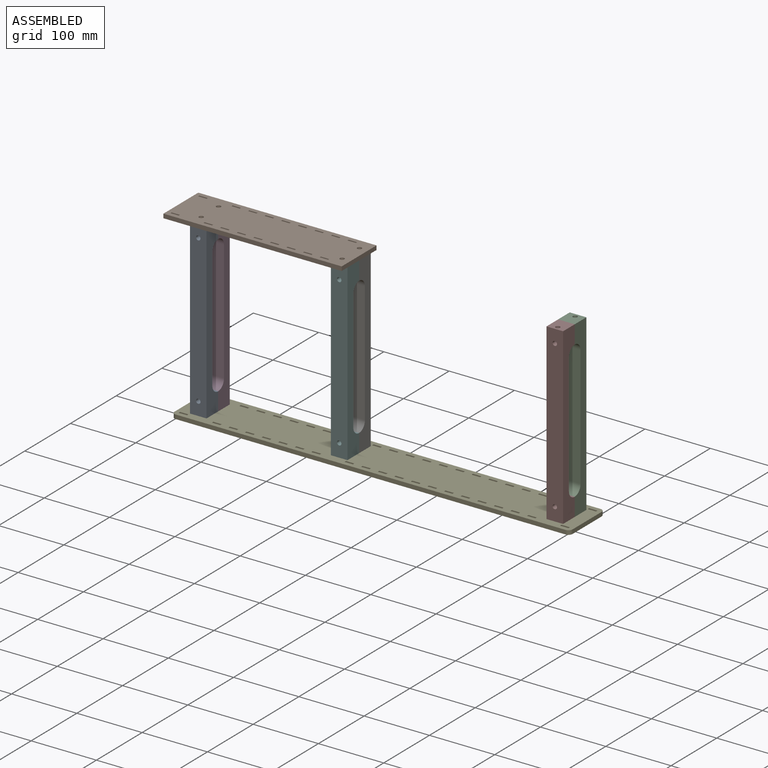
[diagram: assembled view]
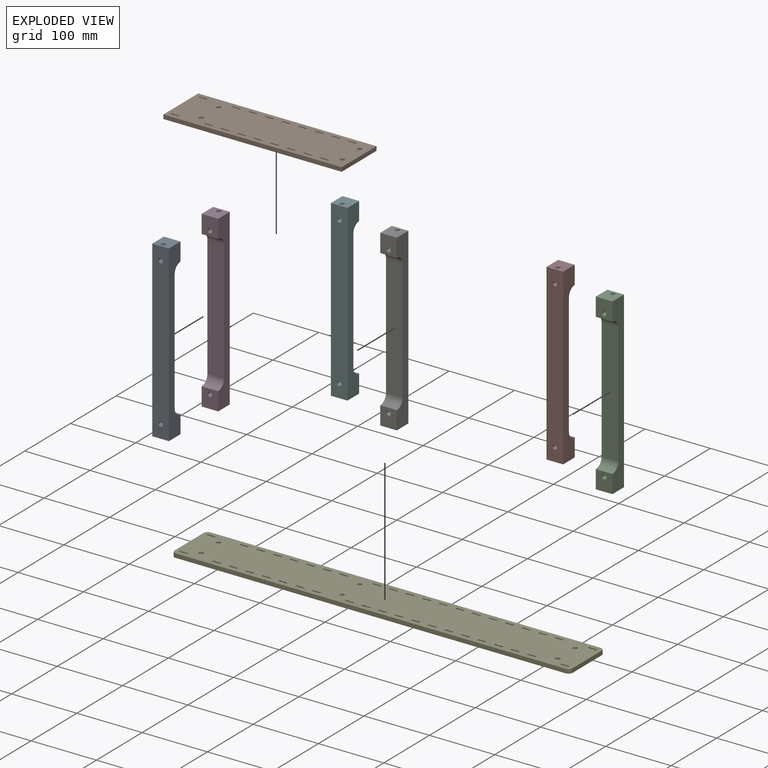
[diagram: exploded view]
GUIDED TOUR — MATED ASSEMBLY (Onshape document 8a57bc8862999d9479056bce, AutoMate assembly 8a57bc8862999d9479056bce_1d3e054195ad34977c405ab9_305c70e0a6d321dda90181b1_default)

This assembly has 8 components, labeled P0..P7 below (a component is one placed occurrence of a part; the same part can appear more than once), held together by 7 mates. A mate is a constraint between two components; its type names the relative motion it leaves free:
  FASTENED — locks the two components together rigidly (no relative motion).
Axis/direction vectors are unit vectors and 'through' points are millimeter coordinates, both in the assembly's world frame.

MATES
  1. FASTENED "Fastened 7": P1 <-> P5, direction (0.000, 0.000, -1.000) through (91.50, 49.64, 244.17) mm
  2. FASTENED "Fastened 2": P5 <-> P6, direction (0.000, 1.000, 0.000) through (91.50, 68.69, 223.85) mm
  3. FASTENED "Fastened 4": P0 <-> P4, direction (0.000, 0.000, -1.000) through (-124.40, 49.64, -22.53) mm
  4. FASTENED "Fastened 3": P2 <-> P7, direction (0.000, -1.000, 0.000) through (421.70, 68.69, 223.85) mm
  5. FASTENED "Fastened 5": P5 <-> P4, direction (0.000, 0.000, -1.000) through (91.50, 49.64, -22.53) mm
  6. FASTENED "Fastened 6": P7 <-> P4, direction (0.000, 0.000, -1.000) through (421.70, 49.64, -22.53) mm
  7. FASTENED "Fastened 1": P0 <-> P3, direction (0.000, 1.000, 0.000) through (-124.40, 68.69, 223.85) mm

ASSEMBLY ORDER
  1. P3 — the base component [order verified]
  2. P0 [order verified]
  3. P6 [order verified]
  4. P5 [order verified]
  5. P7 [order verified]
  6. P2 [order verified]
  7. P1 [order verified]
  8. P4 [order verified]
Order-tag legend:
  [order verified] — this step's position reverses a verified removal order: the component was checked to insert without passing through the ones already placed.

Of the 8 components, 1 carries the full construction recipe — the FeatureScript program that regenerates the part's solid from scratch; the rest are supplied as boundary geometry only.
Each toured component is shown spotlighted twice — in the assembled view, then in the exploded view, where a leader line traces a displaced component back to its assembled socket (saturated green if recipe-attached, orange if geometry-only; every other component desaturated gray) — followed by its recipe or geometry summary and the mates that hold it.
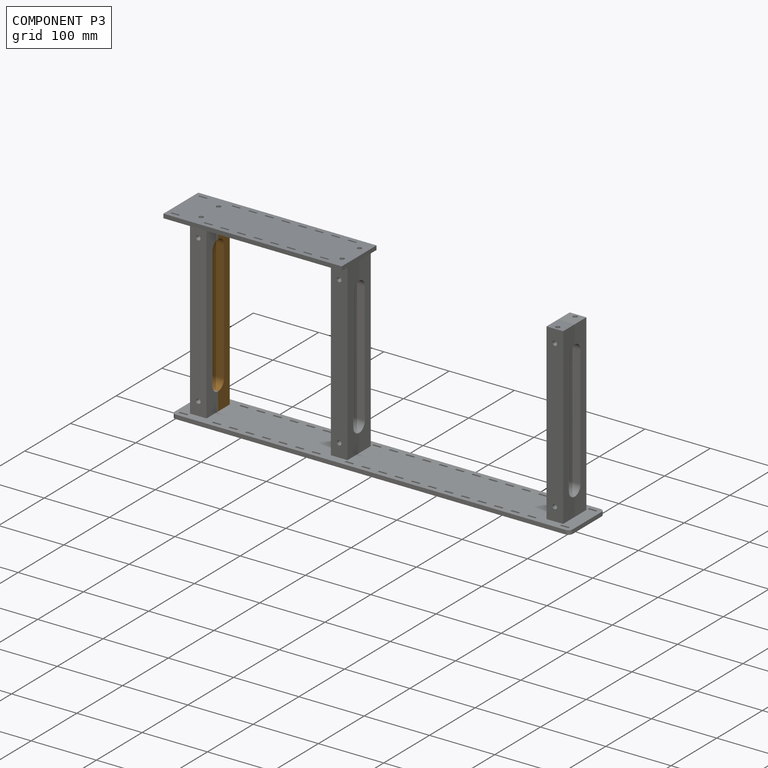
[diagram: component P3 — assembled]
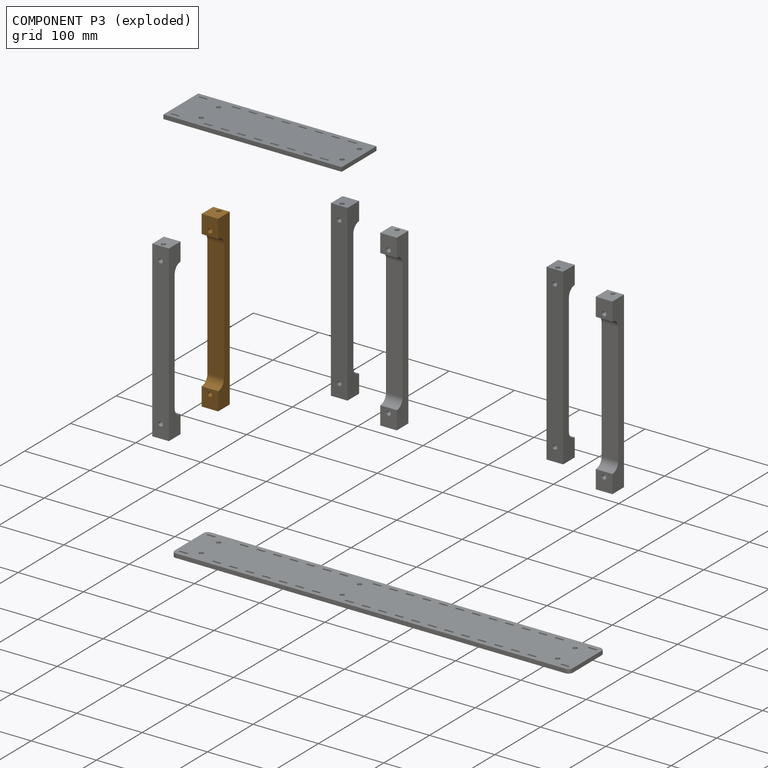
[diagram: component P3 — exploded]
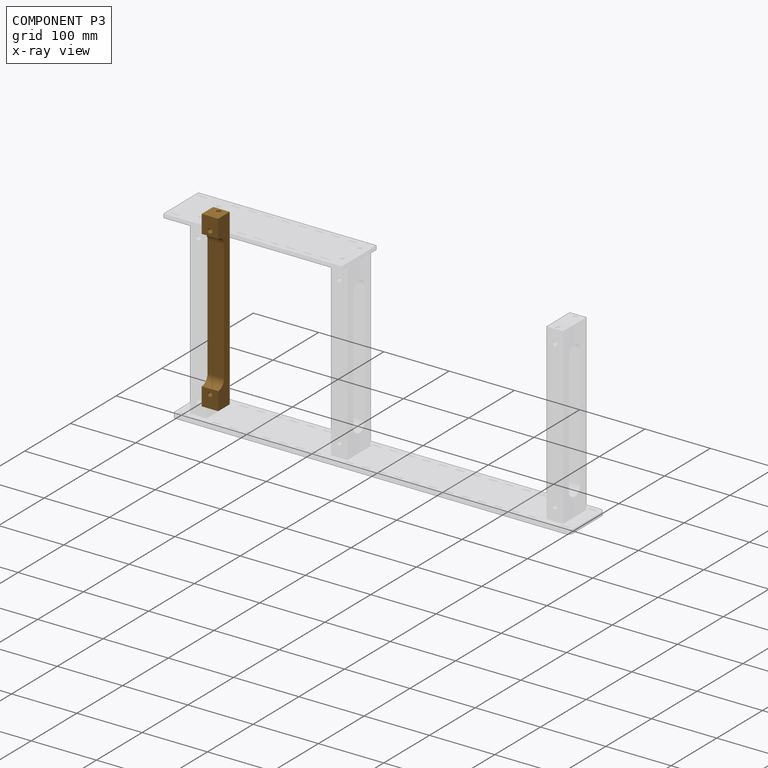
[diagram: component P3 — x-ray view]
COMPONENT P3 — geometry summary (no construction recipe available for this part):
  bounding box: 266.7 x 25.4 x 25.4 mm
  B-rep topology: 1 solid, 16 faces, 72 edges
  volume: 103105 mm^3 (60% of its bounding box)
  symmetry: 2-fold rotationally symmetric about the x axis; mirror-symmetric across its y mid-plane, z mid-plane
Held by: FASTENED mate "Fastened 1" to P0.
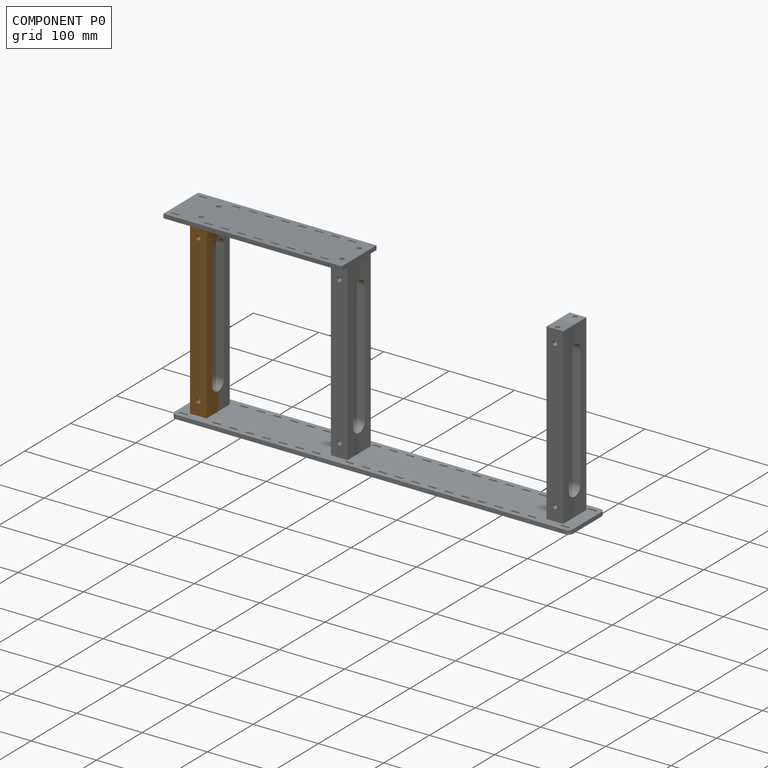
[diagram: component P0 — assembled]
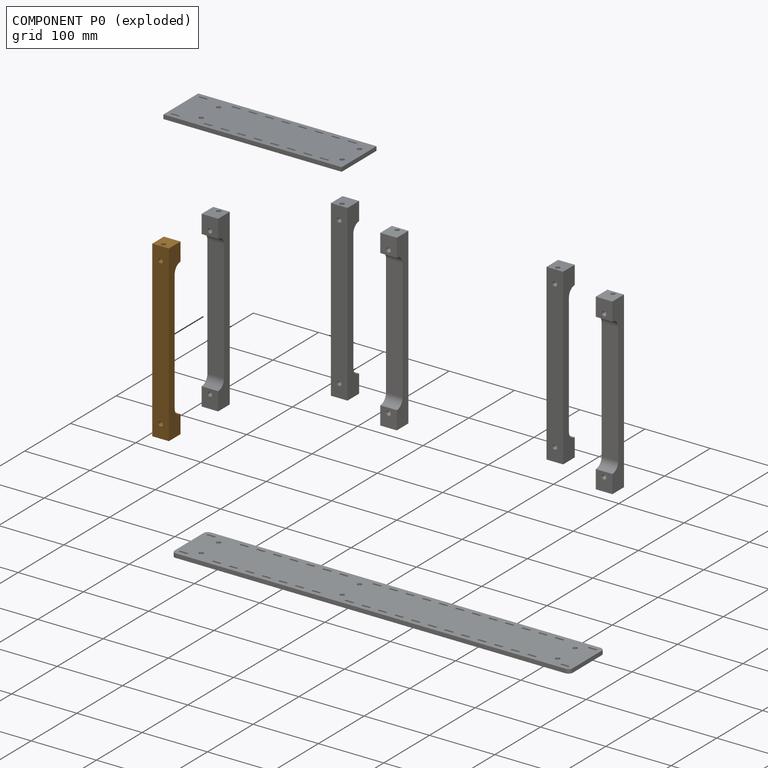
[diagram: component P0 — exploded]
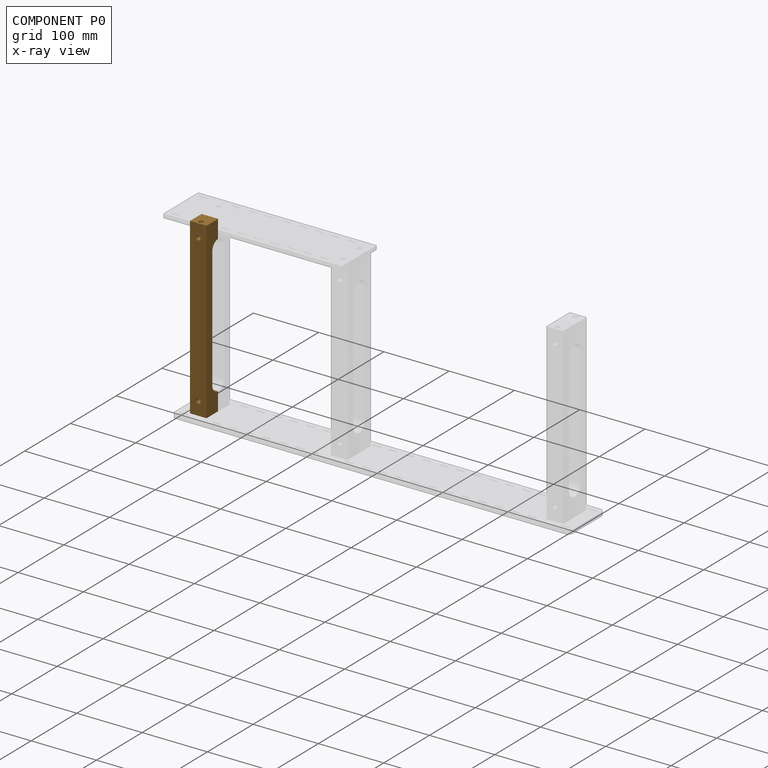
[diagram: component P0 — x-ray view]
COMPONENT P0 — geometry summary (no construction recipe available for this part):
  bounding box: 266.7 x 25.4 x 25.4 mm
  B-rep topology: 1 solid, 16 faces, 72 edges
  volume: 103105 mm^3 (60% of its bounding box)
  symmetry: 2-fold rotationally symmetric about the x axis; mirror-symmetric across its y mid-plane, z mid-plane
Held by: FASTENED mate "Fastened 4" to P4; FASTENED mate "Fastened 1" to P3.
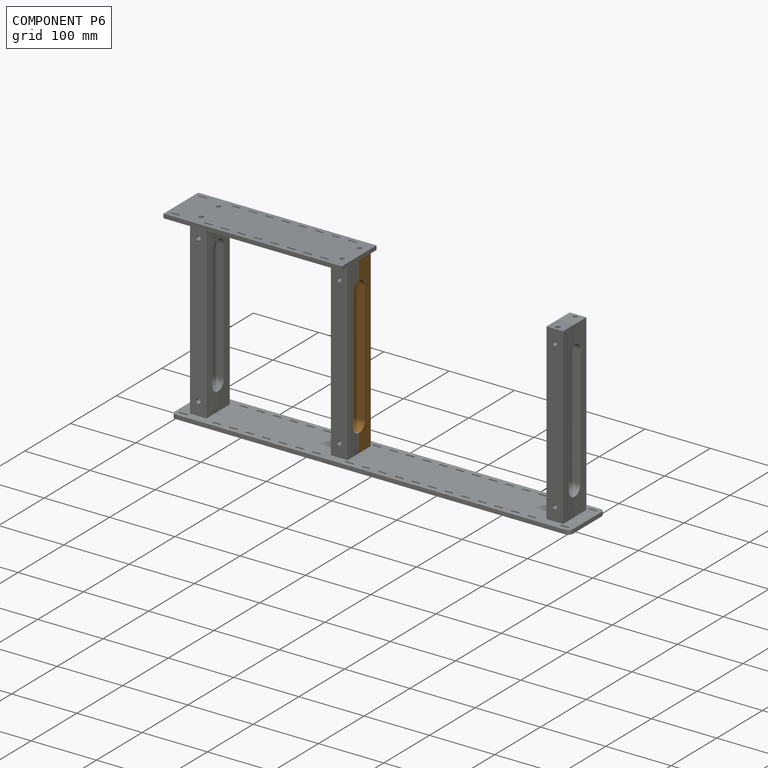
[diagram: component P6 — assembled]
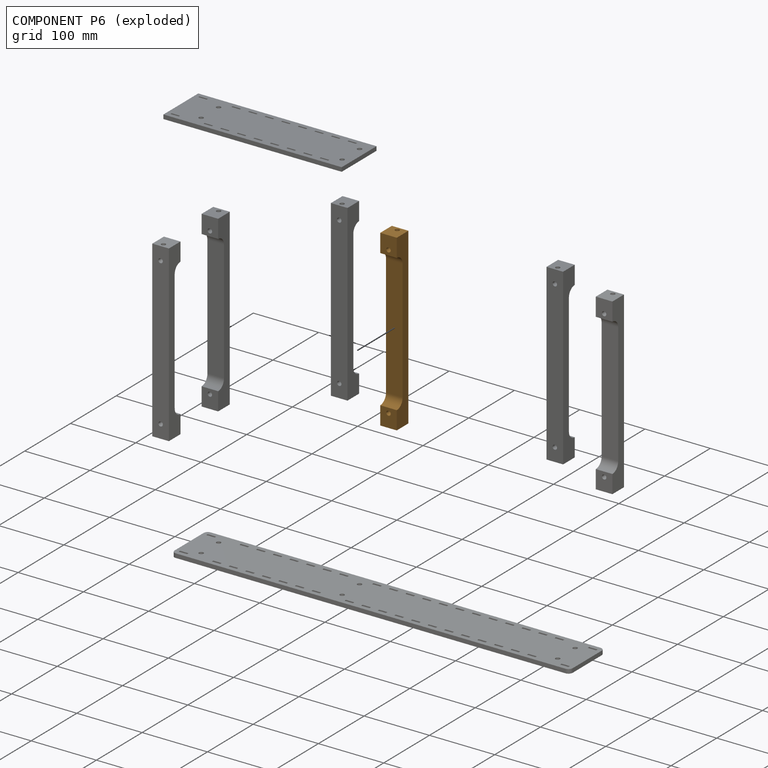
[diagram: component P6 — exploded]
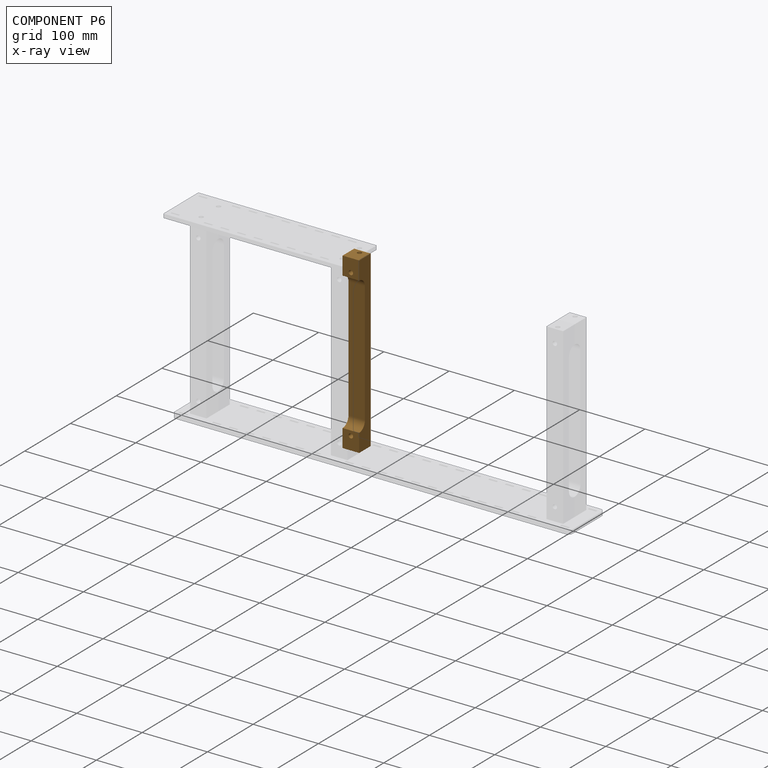
[diagram: component P6 — x-ray view]
COMPONENT P6 — geometry summary (no construction recipe available for this part):
  bounding box: 266.7 x 25.4 x 25.4 mm
  B-rep topology: 1 solid, 16 faces, 72 edges
  volume: 103105 mm^3 (60% of its bounding box)
  symmetry: 2-fold rotationally symmetric about the x axis; mirror-symmetric across its y mid-plane, z mid-plane
Held by: FASTENED mate "Fastened 2" to P5.
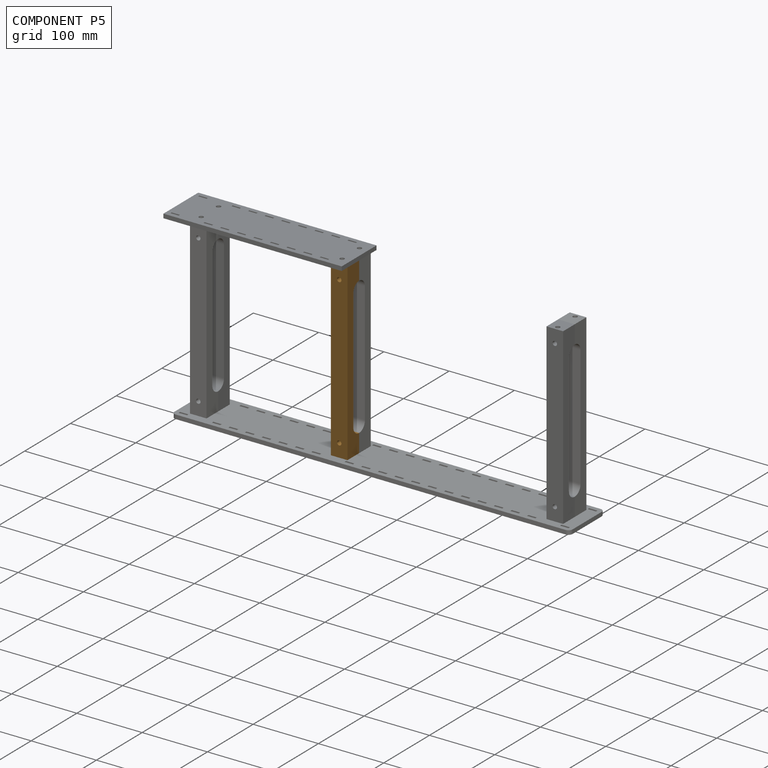
[diagram: component P5 — assembled]
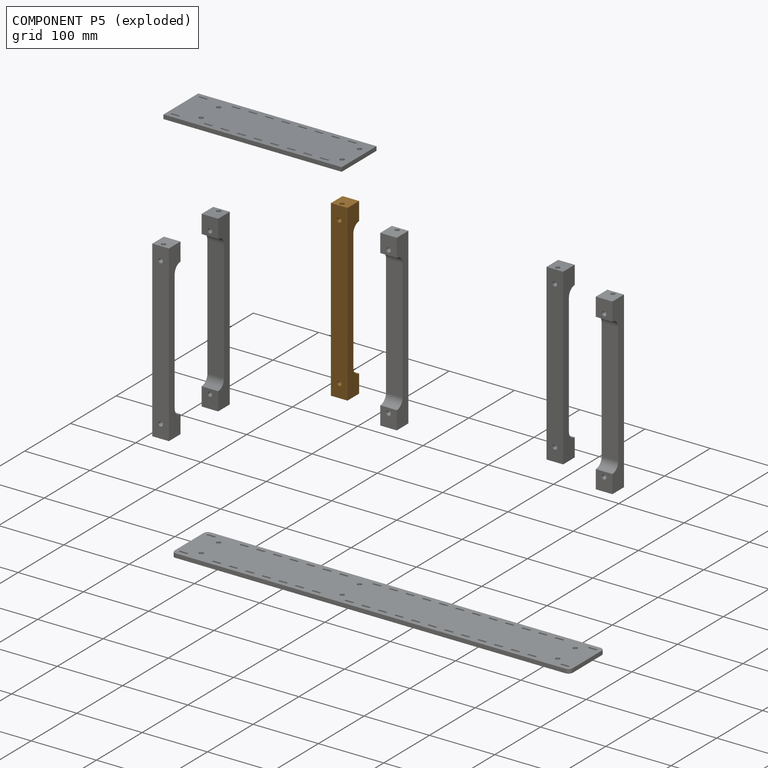
[diagram: component P5 — exploded]
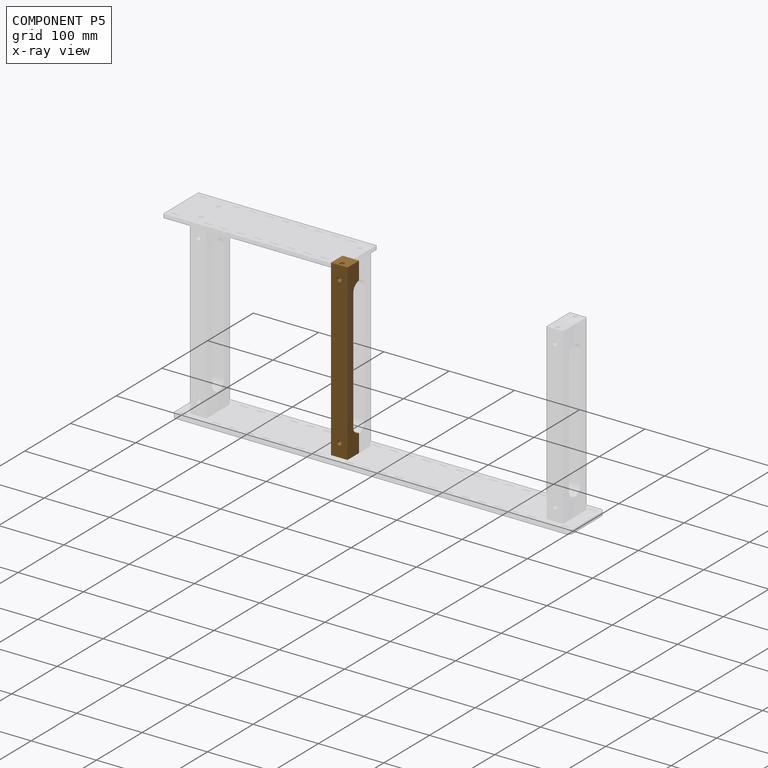
[diagram: component P5 — x-ray view]
COMPONENT P5 — geometry summary (no construction recipe available for this part):
  bounding box: 266.7 x 25.4 x 25.4 mm
  B-rep topology: 1 solid, 16 faces, 72 edges
  volume: 103105 mm^3 (60% of its bounding box)
  symmetry: 2-fold rotationally symmetric about the x axis; mirror-symmetric across its y mid-plane, z mid-plane
Held by: FASTENED mate "Fastened 7" to P1; FASTENED mate "Fastened 2" to P6; FASTENED mate "Fastened 5" to P4.
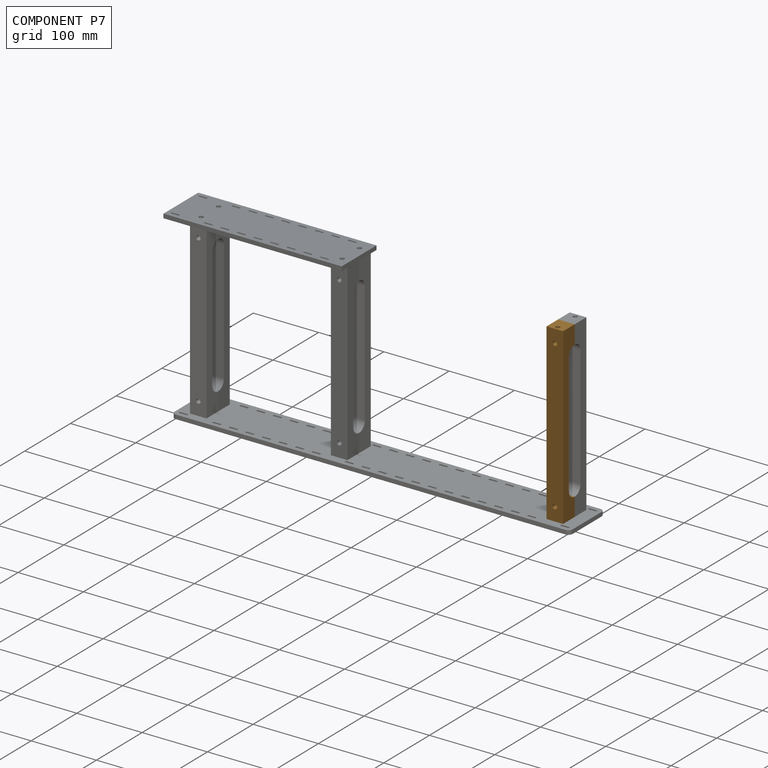
[diagram: component P7 — assembled]
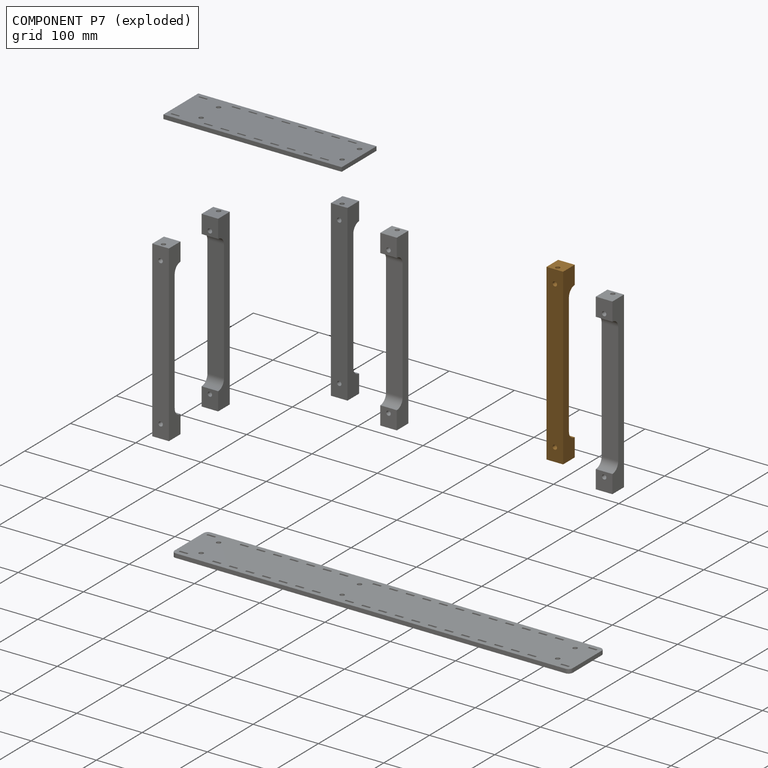
[diagram: component P7 — exploded]
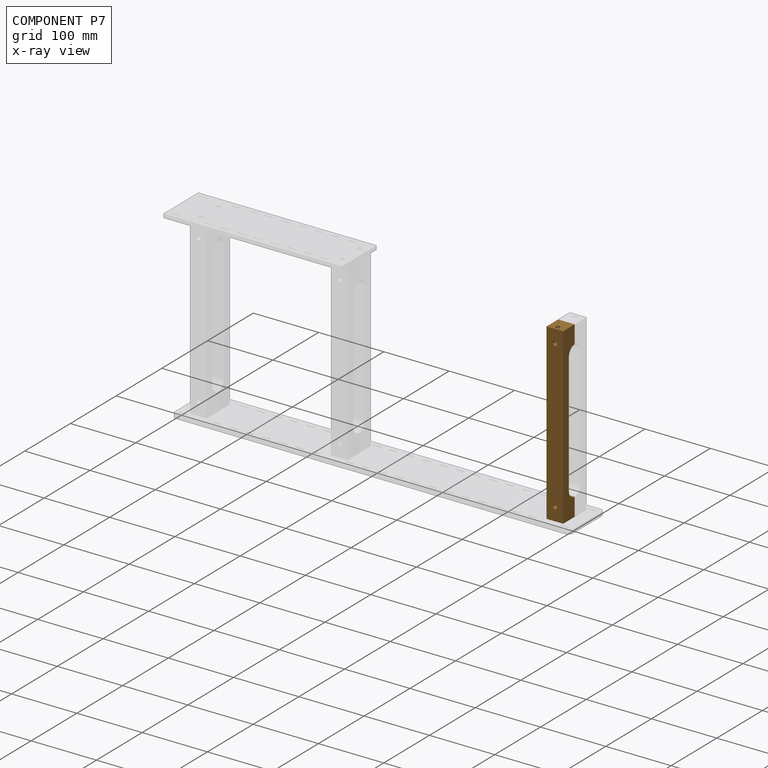
[diagram: component P7 — x-ray view]
COMPONENT P7 — geometry summary (no construction recipe available for this part):
  bounding box: 266.7 x 25.4 x 25.4 mm
  B-rep topology: 1 solid, 16 faces, 72 edges
  volume: 103105 mm^3 (60% of its bounding box)
  symmetry: 2-fold rotationally symmetric about the x axis; mirror-symmetric across its y mid-plane, z mid-plane
Held by: FASTENED mate "Fastened 3" to P2; FASTENED mate "Fastened 6" to P4.
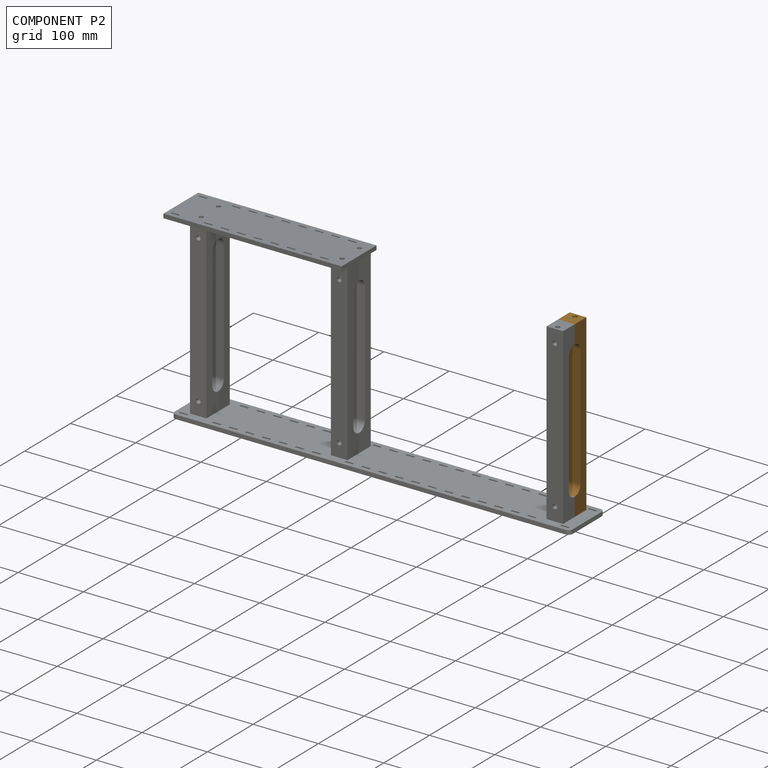
[diagram: component P2 — assembled]
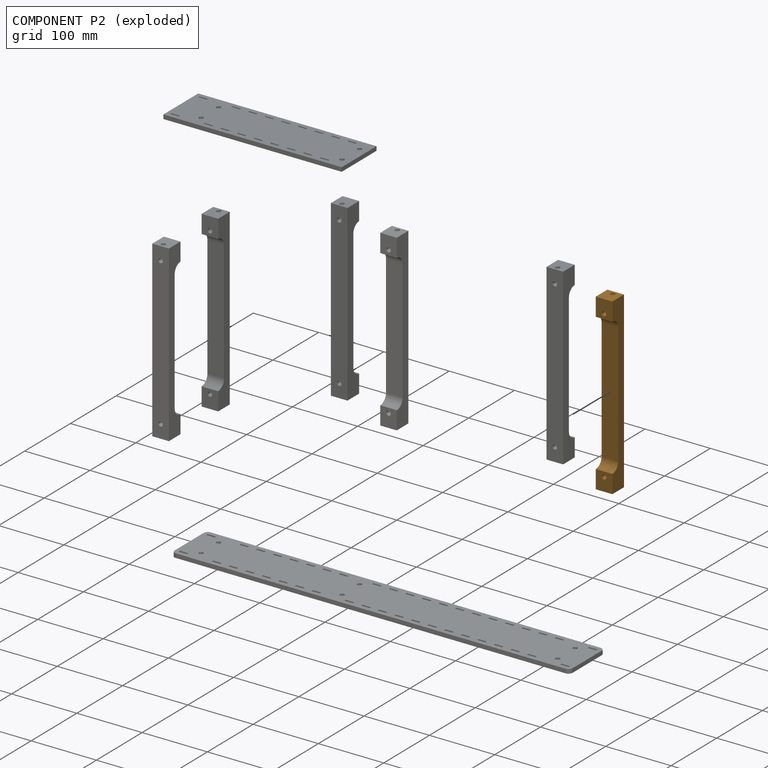
[diagram: component P2 — exploded]
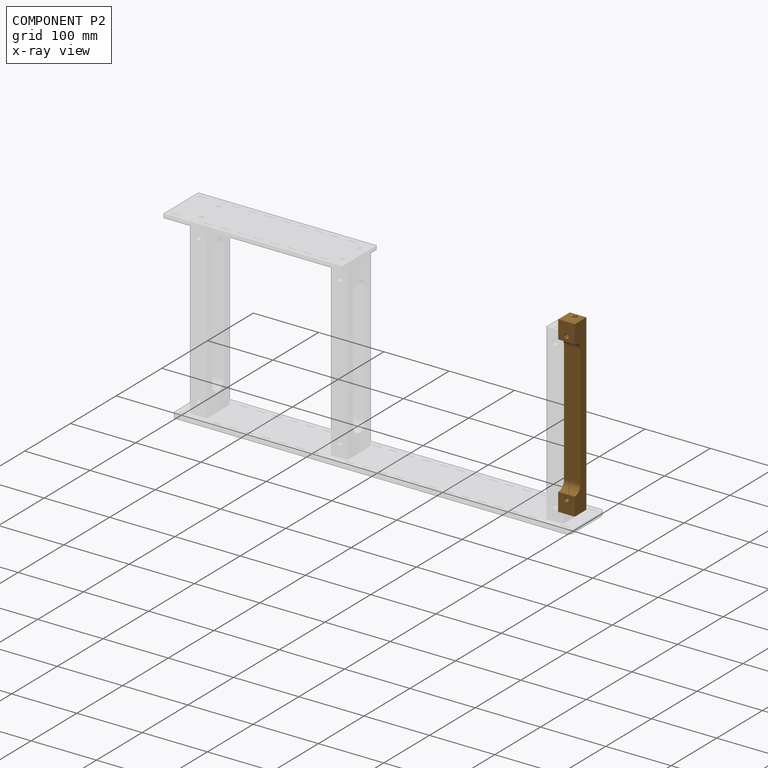
[diagram: component P2 — x-ray view]
COMPONENT P2 — geometry summary (no construction recipe available for this part):
  bounding box: 266.7 x 25.4 x 25.4 mm
  B-rep topology: 1 solid, 16 faces, 72 edges
  volume: 103105 mm^3 (60% of its bounding box)
  symmetry: 2-fold rotationally symmetric about the x axis; mirror-symmetric across its y mid-plane, z mid-plane
Held by: FASTENED mate "Fastened 3" to P7.
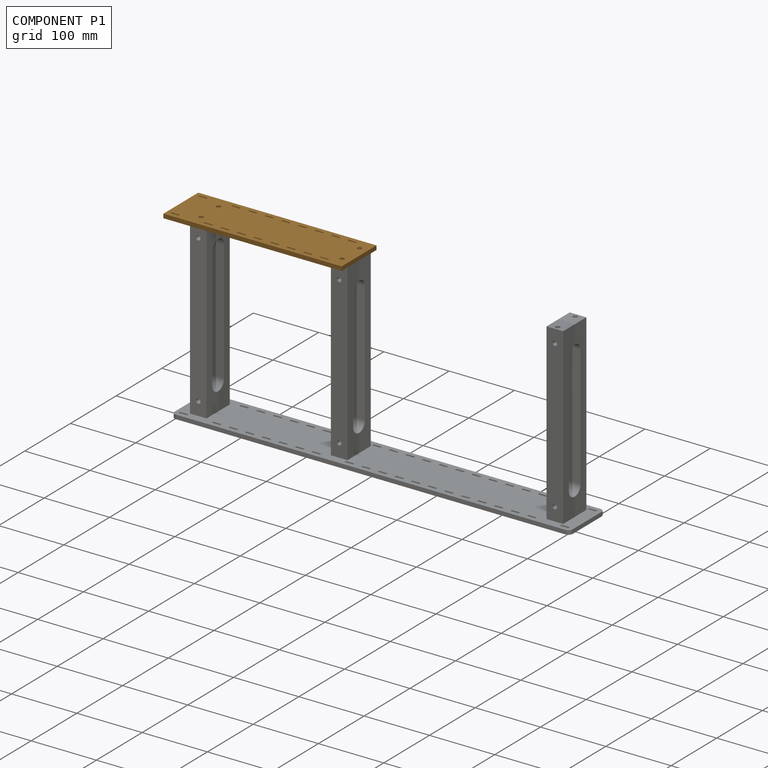
[diagram: component P1 — assembled]
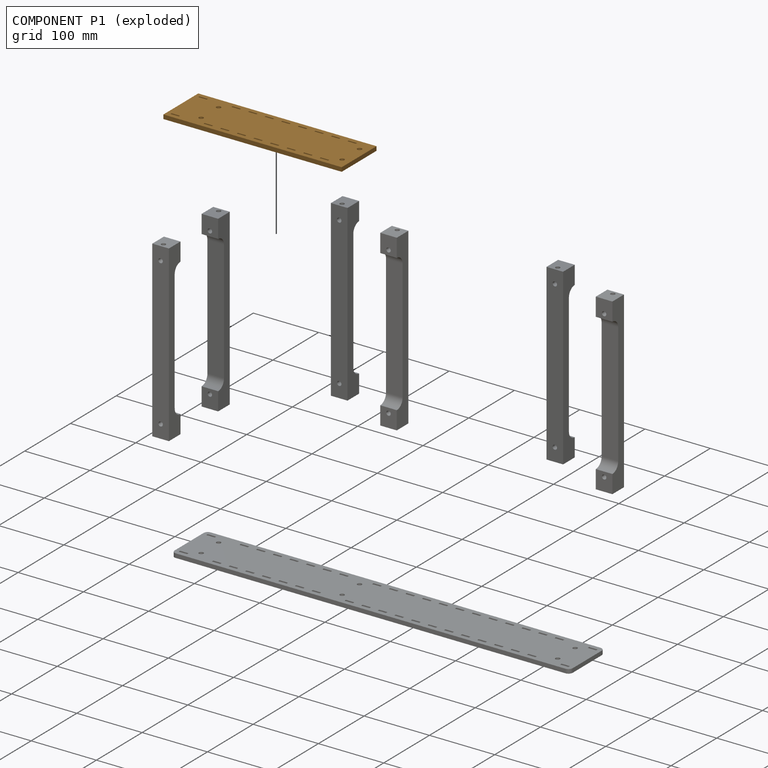
[diagram: component P1 — exploded]
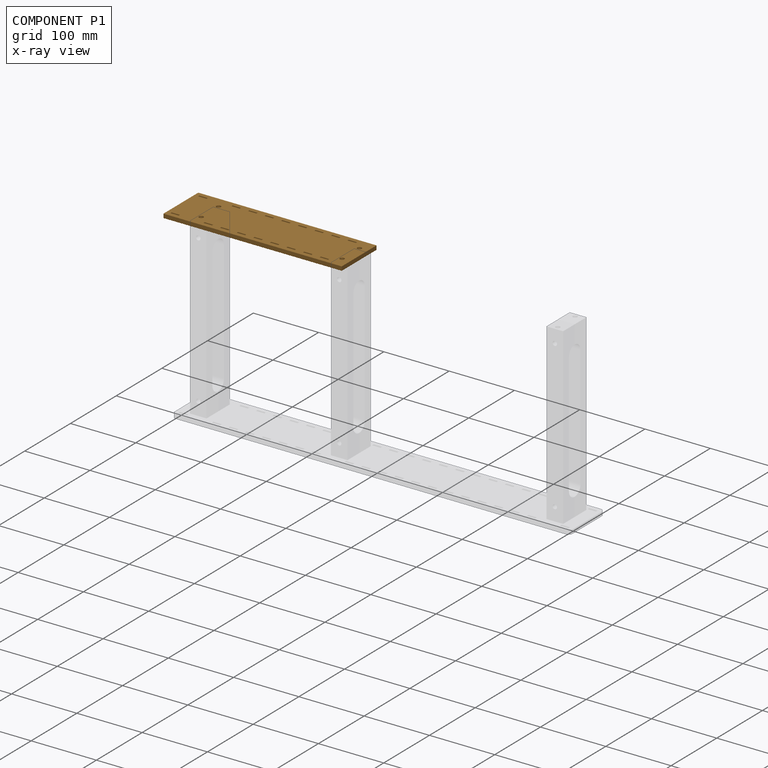
[diagram: component P1 — x-ray view]
COMPONENT P1 — geometry summary (no construction recipe available for this part):
  bounding box: 273.1 x 76.2 x 6.4 mm
  B-rep topology: 1 solid, 82 faces, 480 edges
  volume: 127523 mm^3 (97% of its bounding box)
  symmetry: 2-fold rotationally symmetric about the x axis; mirror-symmetric across its y mid-plane, z mid-plane
Held by: FASTENED mate "Fastened 7" to P5.
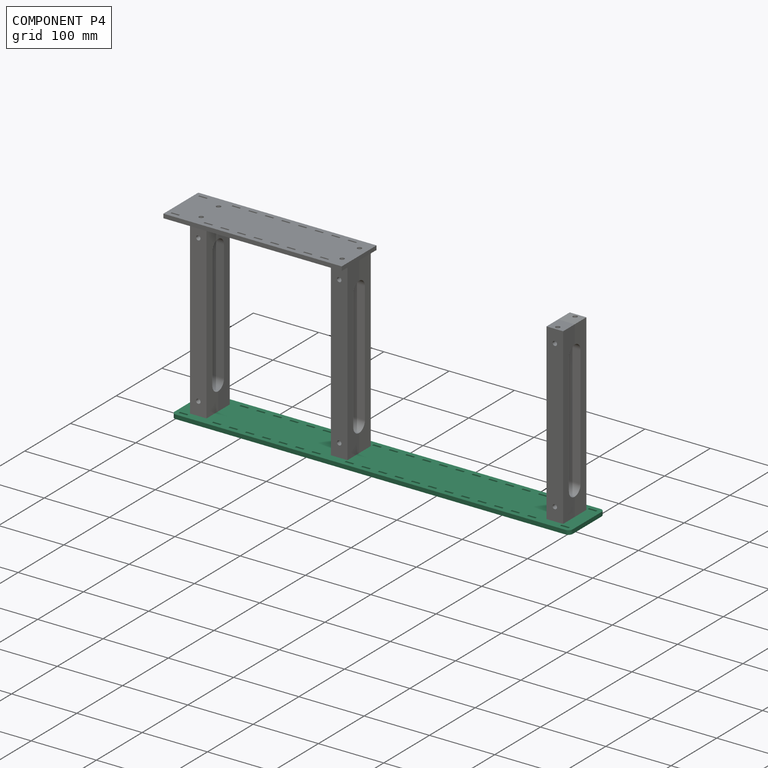
[diagram: component P4 — assembled]
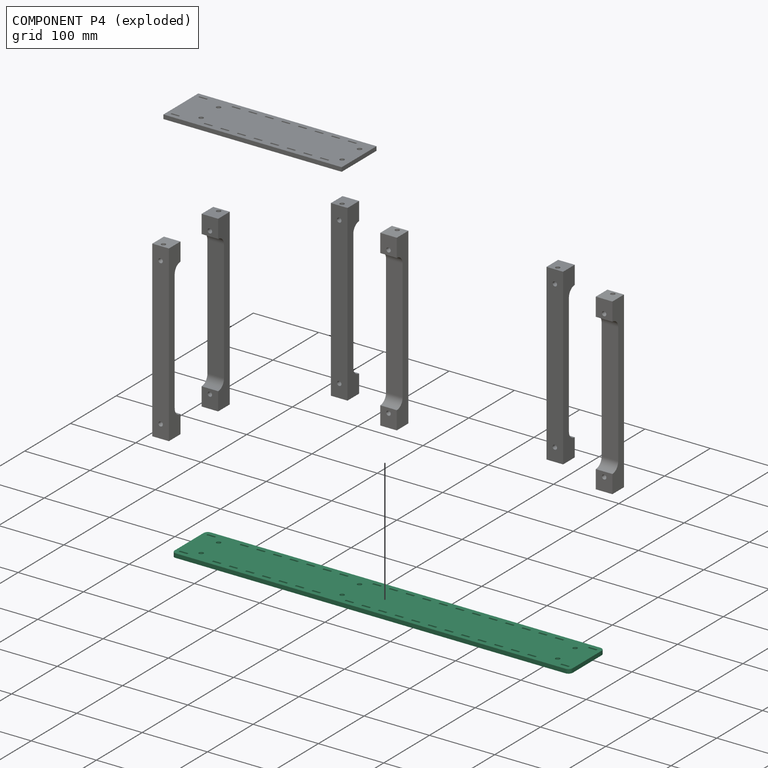
[diagram: component P4 — exploded]
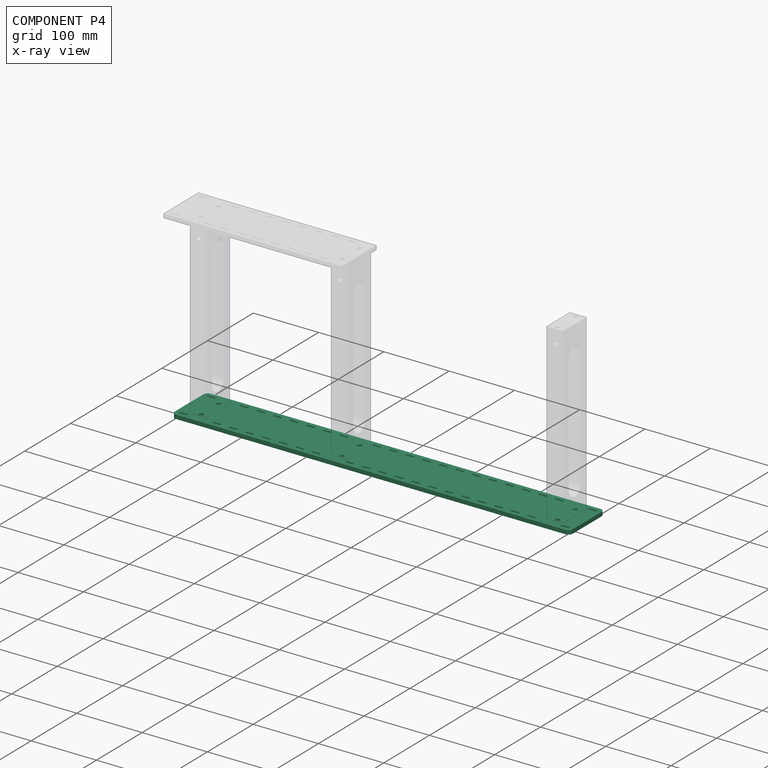
[diagram: component P4 — x-ray view]
COMPONENT P4 — recipe-attached (CADFS 00237547, mesh-verified: the recipe's output STEP matches this component's geometry to below the mesh-comparison resolution (tessellation chordal tolerance ~0.922 mm)).
Held by: FASTENED mate "Fastened 4" to P0; FASTENED mate "Fastened 5" to P5; FASTENED mate "Fastened 6" to P7.
Construction recipe (FeatureScript — the CAD program that rebuilds this solid; sketch coordinates are in the units given by the * unit suffixes, e.g. mm):

FeatureScript 1511;
import(path : "onshape/std/geometry.fs", version : "1511.0");
import(path : "onshape/std/common.fs", version : "1511.0");
const mm = millimeter;
const VERTEX = EntityType.VERTEX;
const EDGE = EntityType.EDGE;
const FACE = EntityType.FACE;
const BODY = EntityType.BODY;
function v(x, y){return vector(x, y);}
function OD(order){return orderDisambiguation(order);}
function OSD(set){return originalSetDisambiguation(set);}
function TD(topology){return topologyDisambiguation(topology);}
function TDD(query){return trueDependencyDisambiguation(query);}
function sQuery(a, b, c) {return sketchEntityQuery(a, b, c);}

annotation { "Feature Type Name" : "Feature", "Feature Type Description" : "" }
export const myFeature = defineFeature(function(context is Context, id is Id, definition is map)
    precondition{}
    {
        {
            var Q0;
            Q0=qCreatedBy(makeId("Top.planeOp"),FACE);
            var sketch = newSketch(context, id + "F0", { "sketchPlane" : qUnion([Q0])});
            skLineSegment(sketch, "E0.bottom", {"start": v(0, 0) * mm, "end": v(609.6, 0) * mm});
            skLineSegment(sketch, "E0.top", {"start": v(0, 76.2) * mm, "end": v(609.6, 76.2) * mm});
            skLineSegment(sketch, "E0.left", {"start": v(0, 0) * mm, "end": v(0, 76.2) * mm});
            skLineSegment(sketch, "E0.right", {"start": v(609.6, 0) * mm, "end": v(609.6, 76.2) * mm});
            skLineSegment(sketch, "E1", {"start": v(0, 76.2) * mm, "end": v(0, 69.85) * mm});
            skLineSegment(sketch, "E2", {"start": v(6.35, 69.85) * mm, "end": v(6.35, 66.68) * mm});
            skLineSegment(sketch, "E3", {"start": v(6.35, 66.68) * mm, "end": v(19.05, 66.68) * mm});
            skLineSegment(sketch, "E4", {"start": v(19.05, 66.68) * mm, "end": v(19.05, 69.85) * mm});
            skLineSegment(sketch, "E5", {"start": v(19.05, 69.85) * mm, "end": v(6.35, 69.85) * mm});
            skLineSegment(sketch, "E6.2.0.0", {"start": v(57.15, 66.68) * mm, "end": v(69.85, 66.68) * mm});
            skLineSegment(sketch, "E6.2.0.1", {"start": v(69.85, 69.85) * mm, "end": v(57.15, 69.85) * mm});
            skLineSegment(sketch, "E6.2.0.2", {"start": v(57.15, 69.85) * mm, "end": v(57.15, 66.68) * mm});
            skLineSegment(sketch, "E6.2.0.3", {"start": v(69.85, 66.67) * mm, "end": v(69.85, 69.85) * mm});
            skLineSegment(sketch, "E6.3.0.0", {"start": v(82.55, 66.68) * mm, "end": v(95.25, 66.68) * mm});
            skLineSegment(sketch, "E6.3.0.1", {"start": v(95.25, 69.85) * mm, "end": v(82.55, 69.85) * mm});
            skLineSegment(sketch, "E6.3.0.2", {"start": v(82.55, 69.85) * mm, "end": v(82.55, 66.68) * mm});
            skLineSegment(sketch, "E6.3.0.3", {"start": v(95.25, 66.67) * mm, "end": v(95.25, 69.85) * mm});
            skLineSegment(sketch, "E6.4.0.0", {"start": v(107.95, 66.68) * mm, "end": v(120.65, 66.68) * mm});
            skLineSegment(sketch, "E6.4.0.1", {"start": v(120.65, 69.85) * mm, "end": v(107.95, 69.85) * mm});
            skLineSegment(sketch, "E6.4.0.2", {"start": v(107.95, 69.85) * mm, "end": v(107.95, 66.68) * mm});
            skLineSegment(sketch, "E6.4.0.3", {"start": v(120.65, 66.67) * mm, "end": v(120.65, 69.85) * mm});
            skLineSegment(sketch, "E6.5.0.0", {"start": v(133.35, 66.68) * mm, "end": v(146.05, 66.68) * mm});
            skLineSegment(sketch, "E6.5.0.1", {"start": v(146.05, 69.85) * mm, "end": v(133.35, 69.85) * mm});
            skLineSegment(sketch, "E6.5.0.2", {"start": v(133.35, 69.85) * mm, "end": v(133.35, 66.68) * mm});
            skLineSegment(sketch, "E6.5.0.3", {"start": v(146.05, 66.67) * mm, "end": v(146.05, 69.85) * mm});
            skLineSegment(sketch, "E6.6.0.0", {"start": v(158.75, 66.68) * mm, "end": v(171.45, 66.68) * mm});
            skLineSegment(sketch, "E6.6.0.1", {"start": v(171.45, 69.85) * mm, "end": v(158.75, 69.85) * mm});
            skLineSegment(sketch, "E6.6.0.2", {"start": v(158.75, 69.85) * mm, "end": v(158.75, 66.68) * mm});
            skLineSegment(sketch, "E6.6.0.3", {"start": v(171.45, 66.67) * mm, "end": v(171.45, 69.85) * mm});
            skLineSegment(sketch, "E6.7.0.0", {"start": v(184.15, 66.68) * mm, "end": v(196.85, 66.68) * mm});
            skLineSegment(sketch, "E6.7.0.1", {"start": v(196.85, 69.85) * mm, "end": v(184.15, 69.85) * mm});
            skLineSegment(sketch, "E6.7.0.2", {"start": v(184.15, 69.85) * mm, "end": v(184.15, 66.68) * mm});
            skLineSegment(sketch, "E6.7.0.3", {"start": v(196.85, 66.67) * mm, "end": v(196.85, 69.85) * mm});
            skLineSegment(sketch, "E6.8.0.0", {"start": v(209.55, 66.68) * mm, "end": v(222.25, 66.68) * mm});
            skLineSegment(sketch, "E6.8.0.1", {"start": v(222.25, 69.85) * mm, "end": v(209.55, 69.85) * mm});
            skLineSegment(sketch, "E6.8.0.2", {"start": v(209.55, 69.85) * mm, "end": v(209.55, 66.68) * mm});
            skLineSegment(sketch, "E6.8.0.3", {"start": v(222.25, 66.67) * mm, "end": v(222.25, 69.85) * mm});
            skLineSegment(sketch, "E6.10.0.0", {"start": v(260.35, 66.68) * mm, "end": v(273.05, 66.68) * mm});
            skLineSegment(sketch, "E6.10.0.1", {"start": v(273.05, 69.85) * mm, "end": v(260.35, 69.85) * mm});
            skLineSegment(sketch, "E6.10.0.2", {"start": v(260.35, 69.85) * mm, "end": v(260.35, 66.68) * mm});
            skLineSegment(sketch, "E6.10.0.3", {"start": v(273.05, 66.67) * mm, "end": v(273.05, 69.85) * mm});
            skLineSegment(sketch, "E6.11.0.0", {"start": v(285.75, 66.68) * mm, "end": v(298.45, 66.68) * mm});
            skLineSegment(sketch, "E6.11.0.1", {"start": v(298.45, 69.85) * mm, "end": v(285.75, 69.85) * mm});
            skLineSegment(sketch, "E6.11.0.2", {"start": v(285.75, 69.85) * mm, "end": v(285.75, 66.68) * mm});
            skLineSegment(sketch, "E6.11.0.3", {"start": v(298.45, 66.67) * mm, "end": v(298.45, 69.85) * mm});
            skLineSegment(sketch, "E6.12.0.0", {"start": v(311.15, 66.68) * mm, "end": v(323.85, 66.68) * mm});
            skLineSegment(sketch, "E6.12.0.1", {"start": v(323.85, 69.85) * mm, "end": v(311.15, 69.85) * mm});
            skLineSegment(sketch, "E6.12.0.2", {"start": v(311.15, 69.85) * mm, "end": v(311.15, 66.68) * mm});
            skLineSegment(sketch, "E6.12.0.3", {"start": v(323.85, 66.67) * mm, "end": v(323.85, 69.85) * mm});
            skLineSegment(sketch, "E6.13.0.0", {"start": v(336.55, 66.68) * mm, "end": v(349.25, 66.68) * mm});
            skLineSegment(sketch, "E6.13.0.1", {"start": v(349.25, 69.85) * mm, "end": v(336.55, 69.85) * mm});
            skLineSegment(sketch, "E6.13.0.2", {"start": v(336.55, 69.85) * mm, "end": v(336.55, 66.68) * mm});
            skLineSegment(sketch, "E6.13.0.3", {"start": v(349.25, 66.67) * mm, "end": v(349.25, 69.85) * mm});
            skLineSegment(sketch, "E6.14.0.0", {"start": v(361.95, 66.68) * mm, "end": v(374.65, 66.68) * mm});
            skLineSegment(sketch, "E6.14.0.1", {"start": v(374.65, 69.85) * mm, "end": v(361.95, 69.85) * mm});
            skLineSegment(sketch, "E6.14.0.2", {"start": v(361.95, 69.85) * mm, "end": v(361.95, 66.68) * mm});
            skLineSegment(sketch, "E6.14.0.3", {"start": v(374.65, 66.67) * mm, "end": v(374.65, 69.85) * mm});
            skLineSegment(sketch, "E6.15.0.0", {"start": v(387.35, 66.68) * mm, "end": v(400.05, 66.68) * mm});
            skLineSegment(sketch, "E6.15.0.1", {"start": v(400.05, 69.85) * mm, "end": v(387.35, 69.85) * mm});
            skLineSegment(sketch, "E6.15.0.2", {"start": v(387.35, 69.85) * mm, "end": v(387.35, 66.68) * mm});
            skLineSegment(sketch, "E6.15.0.3", {"start": v(400.05, 66.67) * mm, "end": v(400.05, 69.85) * mm});
            skLineSegment(sketch, "E6.16.0.0", {"start": v(412.75, 66.68) * mm, "end": v(425.45, 66.68) * mm});
            skLineSegment(sketch, "E6.16.0.1", {"start": v(425.45, 69.85) * mm, "end": v(412.75, 69.85) * mm});
            skLineSegment(sketch, "E6.16.0.2", {"start": v(412.75, 69.85) * mm, "end": v(412.75, 66.68) * mm});
            skLineSegment(sketch, "E6.16.0.3", {"start": v(425.45, 66.67) * mm, "end": v(425.45, 69.85) * mm});
            skLineSegment(sketch, "E6.17.0.0", {"start": v(438.15, 66.68) * mm, "end": v(450.85, 66.68) * mm});
            skLineSegment(sketch, "E6.17.0.1", {"start": v(450.85, 69.85) * mm, "end": v(438.15, 69.85) * mm});
            skLineSegment(sketch, "E6.17.0.2", {"start": v(438.15, 69.85) * mm, "end": v(438.15, 66.68) * mm});
            skLineSegment(sketch, "E6.17.0.3", {"start": v(450.85, 66.67) * mm, "end": v(450.85, 69.85) * mm});
            skLineSegment(sketch, "E6.18.0.0", {"start": v(463.55, 66.68) * mm, "end": v(476.25, 66.68) * mm});
            skLineSegment(sketch, "E6.18.0.1", {"start": v(476.25, 69.85) * mm, "end": v(463.55, 69.85) * mm});
            skLineSegment(sketch, "E6.18.0.2", {"start": v(463.55, 69.85) * mm, "end": v(463.55, 66.68) * mm});
            skLineSegment(sketch, "E6.18.0.3", {"start": v(476.25, 66.67) * mm, "end": v(476.25, 69.85) * mm});
            skLineSegment(sketch, "E7.0.19.0", {"start": v(488.95, 66.67) * mm, "end": v(501.65, 66.67) * mm});
            skLineSegment(sketch, "E7.3.19.0", {"start": v(501.65, 69.85) * mm, "end": v(488.95, 69.85) * mm});
            skLineSegment(sketch, "E7.6.19.0", {"start": v(488.95, 69.85) * mm, "end": v(488.95, 66.68) * mm});
            skLineSegment(sketch, "E7.9.19.0", {"start": v(501.65, 66.67) * mm, "end": v(501.65, 69.85) * mm});
            skLineSegment(sketch, "E7.0.20.0", {"start": v(514.35, 66.67) * mm, "end": v(527.05, 66.67) * mm});
            skLineSegment(sketch, "E7.3.20.0", {"start": v(527.05, 69.85) * mm, "end": v(514.35, 69.85) * mm});
            skLineSegment(sketch, "E7.6.20.0", {"start": v(514.35, 69.85) * mm, "end": v(514.35, 66.68) * mm});
            skLineSegment(sketch, "E7.9.20.0", {"start": v(527.05, 66.67) * mm, "end": v(527.05, 69.85) * mm});
            skLineSegment(sketch, "E7.0.21.0", {"start": v(539.75, 66.67) * mm, "end": v(552.45, 66.67) * mm});
            skLineSegment(sketch, "E7.3.21.0", {"start": v(552.45, 69.85) * mm, "end": v(539.75, 69.85) * mm});
            skLineSegment(sketch, "E7.6.21.0", {"start": v(539.75, 69.85) * mm, "end": v(539.75, 66.68) * mm});
            skLineSegment(sketch, "E7.9.21.0", {"start": v(552.45, 66.67) * mm, "end": v(552.45, 69.85) * mm});
            skLineSegment(sketch, "E8.0.23.0", {"start": v(590.55, 66.67) * mm, "end": v(603.25, 66.67) * mm});
            skLineSegment(sketch, "E8.3.23.0", {"start": v(603.25, 69.85) * mm, "end": v(590.55, 69.85) * mm});
            skLineSegment(sketch, "E8.6.23.0", {"start": v(590.55, 69.85) * mm, "end": v(590.55, 66.68) * mm});
            skLineSegment(sketch, "E8.9.23.0", {"start": v(603.25, 66.67) * mm, "end": v(603.25, 69.85) * mm});
            skLineSegment(sketch, "E9.MirrorCS", {"start": v(387.35, 6.35) * mm, "end": v(387.35, 9.52) * mm});
            skLineSegment(sketch, "E10.MirrorCS", {"start": v(539.75, 6.35) * mm, "end": v(539.75, 9.52) * mm});
            skLineSegment(sketch, "E11.MirrorCS", {"start": v(336.55, 6.35) * mm, "end": v(336.55, 9.52) * mm});
            skLineSegment(sketch, "E12.MirrorCS", {"start": v(438.15, 6.35) * mm, "end": v(438.15, 9.52) * mm});
            skLineSegment(sketch, "E13.MirrorCS", {"start": v(488.95, 6.35) * mm, "end": v(488.95, 9.52) * mm});
            skLineSegment(sketch, "E14.MirrorCS", {"start": v(590.55, 6.35) * mm, "end": v(590.55, 9.52) * mm});
            skLineSegment(sketch, "E15.MirrorCS", {"start": v(552.45, 9.53) * mm, "end": v(552.45, 6.35) * mm});
            skLineSegment(sketch, "E16.MirrorCS", {"start": v(501.65, 9.53) * mm, "end": v(501.65, 6.35) * mm});
            skLineSegment(sketch, "E17.MirrorCS", {"start": v(603.25, 9.53) * mm, "end": v(603.25, 6.35) * mm});
            skLineSegment(sketch, "E18.MirrorCS", {"start": v(463.55, 6.35) * mm, "end": v(463.55, 9.52) * mm});
            skLineSegment(sketch, "E19.MirrorCS", {"start": v(361.95, 6.35) * mm, "end": v(361.95, 9.52) * mm});
            skLineSegment(sketch, "E20.MirrorCS", {"start": v(311.15, 6.35) * mm, "end": v(311.15, 9.52) * mm});
            skLineSegment(sketch, "E21.MirrorCS", {"start": v(412.75, 6.35) * mm, "end": v(412.75, 9.52) * mm});
            skLineSegment(sketch, "E22.MirrorCS", {"start": v(374.65, 9.53) * mm, "end": v(374.65, 6.35) * mm});
            skLineSegment(sketch, "E23.MirrorCS", {"start": v(425.45, 9.53) * mm, "end": v(425.45, 6.35) * mm});
            skLineSegment(sketch, "E24.MirrorCS", {"start": v(323.85, 9.53) * mm, "end": v(323.85, 6.35) * mm});
            skLineSegment(sketch, "E25.MirrorCS", {"start": v(476.25, 9.53) * mm, "end": v(476.25, 6.35) * mm});
            skLineSegment(sketch, "E26.MirrorCS", {"start": v(527.05, 9.53) * mm, "end": v(527.05, 6.35) * mm});
            skLineSegment(sketch, "E27.MirrorCS", {"start": v(450.85, 9.53) * mm, "end": v(450.85, 6.35) * mm});
            skLineSegment(sketch, "E28.MirrorCS", {"start": v(349.25, 9.53) * mm, "end": v(349.25, 6.35) * mm});
            skLineSegment(sketch, "E29.MirrorCS", {"start": v(400.05, 9.53) * mm, "end": v(400.05, 6.35) * mm});
            skLineSegment(sketch, "E30.MirrorCS", {"start": v(514.35, 6.35) * mm, "end": v(514.35, 9.52) * mm});
            skLineSegment(sketch, "E31.MirrorCS", {"start": v(387.35, 9.52) * mm, "end": v(400.05, 9.52) * mm});
            skLineSegment(sketch, "E32.MirrorCS", {"start": v(336.55, 9.52) * mm, "end": v(349.25, 9.52) * mm});
            skLineSegment(sketch, "E33.MirrorCS", {"start": v(438.15, 9.52) * mm, "end": v(450.85, 9.52) * mm});
            skLineSegment(sketch, "E34.MirrorCS", {"start": v(488.95, 9.53) * mm, "end": v(501.65, 9.53) * mm});
            skLineSegment(sketch, "E35.MirrorCS", {"start": v(400.05, 6.35) * mm, "end": v(387.35, 6.35) * mm});
            skLineSegment(sketch, "E36.MirrorCS", {"start": v(590.55, 9.53) * mm, "end": v(603.25, 9.53) * mm});
            skLineSegment(sketch, "E37.MirrorCS", {"start": v(349.25, 6.35) * mm, "end": v(336.55, 6.35) * mm});
            skLineSegment(sketch, "E38.MirrorCS", {"start": v(539.75, 9.53) * mm, "end": v(552.45, 9.53) * mm});
            skLineSegment(sketch, "E39.MirrorCS", {"start": v(450.85, 6.35) * mm, "end": v(438.15, 6.35) * mm});
            skLineSegment(sketch, "E40.MirrorCS", {"start": v(501.65, 6.35) * mm, "end": v(488.95, 6.35) * mm});
            skLineSegment(sketch, "E41.MirrorCS", {"start": v(603.25, 6.35) * mm, "end": v(590.55, 6.35) * mm});
            skLineSegment(sketch, "E42.MirrorCS", {"start": v(552.45, 6.35) * mm, "end": v(539.75, 6.35) * mm});
            skLineSegment(sketch, "E43.MirrorCS", {"start": v(463.55, 9.52) * mm, "end": v(476.25, 9.52) * mm});
            skLineSegment(sketch, "E44.MirrorCS", {"start": v(361.95, 9.52) * mm, "end": v(374.65, 9.52) * mm});
            skLineSegment(sketch, "E45.MirrorCS", {"start": v(476.25, 6.35) * mm, "end": v(463.55, 6.35) * mm});
            skLineSegment(sketch, "E46.MirrorCS", {"start": v(374.65, 6.35) * mm, "end": v(361.95, 6.35) * mm});
            skLineSegment(sketch, "E47.MirrorCS", {"start": v(412.75, 9.52) * mm, "end": v(425.45, 9.52) * mm});
            skLineSegment(sketch, "E48.MirrorCS", {"start": v(311.15, 9.52) * mm, "end": v(323.85, 9.52) * mm});
            skLineSegment(sketch, "E49.MirrorCS", {"start": v(323.85, 6.35) * mm, "end": v(311.15, 6.35) * mm});
            skLineSegment(sketch, "E50.MirrorCS", {"start": v(514.35, 9.53) * mm, "end": v(527.05, 9.53) * mm});
            skLineSegment(sketch, "E51.MirrorCS", {"start": v(425.45, 6.35) * mm, "end": v(412.75, 6.35) * mm});
            skLineSegment(sketch, "E52.MirrorCS", {"start": v(527.05, 6.35) * mm, "end": v(514.35, 6.35) * mm});
            skLineSegment(sketch, "E53.MirrorCS", {"start": v(285.75, 9.52) * mm, "end": v(298.45, 9.52) * mm});
            skLineSegment(sketch, "E54.MirrorCS", {"start": v(273.05, 9.53) * mm, "end": v(273.05, 6.35) * mm});
            skLineSegment(sketch, "E55.MirrorCS", {"start": v(260.35, 6.35) * mm, "end": v(260.35, 9.52) * mm});
            skLineSegment(sketch, "E56.MirrorCS", {"start": v(273.05, 6.35) * mm, "end": v(260.35, 6.35) * mm});
            skLineSegment(sketch, "E57.MirrorCS", {"start": v(260.35, 9.52) * mm, "end": v(273.05, 9.52) * mm});
            skLineSegment(sketch, "E58.MirrorCS", {"start": v(222.25, 9.53) * mm, "end": v(222.25, 6.35) * mm});
            skLineSegment(sketch, "E59.MirrorCS", {"start": v(222.25, 6.35) * mm, "end": v(209.55, 6.35) * mm});
            skLineSegment(sketch, "E60.MirrorCS", {"start": v(209.55, 9.52) * mm, "end": v(222.25, 9.52) * mm});
            skLineSegment(sketch, "E61.MirrorCS", {"start": v(298.45, 9.53) * mm, "end": v(298.45, 6.35) * mm});
            skLineSegment(sketch, "E62.MirrorCS", {"start": v(285.75, 6.35) * mm, "end": v(285.75, 9.52) * mm});
            skLineSegment(sketch, "E63.MirrorCS", {"start": v(298.45, 6.35) * mm, "end": v(285.75, 6.35) * mm});
            skLineSegment(sketch, "E64.MirrorCS", {"start": v(6.35, 6.35) * mm, "end": v(6.35, 9.52) * mm});
            skLineSegment(sketch, "E65.MirrorCS", {"start": v(19.05, 9.53) * mm, "end": v(19.05, 6.35) * mm});
            skLineSegment(sketch, "E66.MirrorCS", {"start": v(171.45, 9.53) * mm, "end": v(171.45, 6.35) * mm});
            skLineSegment(sketch, "E67.MirrorCS", {"start": v(69.85, 9.53) * mm, "end": v(69.85, 6.35) * mm});
            skLineSegment(sketch, "E68.MirrorCS", {"start": v(82.55, 6.35) * mm, "end": v(82.55, 9.52) * mm});
            skLineSegment(sketch, "E69.MirrorCS", {"start": v(184.15, 6.35) * mm, "end": v(184.15, 9.52) * mm});
            skLineSegment(sketch, "E70.MirrorCS", {"start": v(95.25, 9.53) * mm, "end": v(95.25, 6.35) * mm});
            skLineSegment(sketch, "E71.MirrorCS", {"start": v(196.85, 9.53) * mm, "end": v(196.85, 6.35) * mm});
            skLineSegment(sketch, "E72.MirrorCS", {"start": v(146.05, 9.53) * mm, "end": v(146.05, 6.35) * mm});
            skLineSegment(sketch, "E73.MirrorCS", {"start": v(107.95, 6.35) * mm, "end": v(107.95, 9.52) * mm});
            skLineSegment(sketch, "E74.MirrorCS", {"start": v(133.35, 6.35) * mm, "end": v(133.35, 9.52) * mm});
            skLineSegment(sketch, "E75.MirrorCS", {"start": v(120.65, 9.53) * mm, "end": v(120.65, 6.35) * mm});
            skLineSegment(sketch, "E76.MirrorCS", {"start": v(6.35, 9.53) * mm, "end": v(19.05, 9.53) * mm});
            skLineSegment(sketch, "E77.MirrorCS", {"start": v(19.05, 6.35) * mm, "end": v(6.35, 6.35) * mm});
            skLineSegment(sketch, "E78.MirrorCS", {"start": v(57.15, 6.35) * mm, "end": v(57.15, 9.52) * mm});
            skLineSegment(sketch, "E79.MirrorCS", {"start": v(158.75, 6.35) * mm, "end": v(158.75, 9.52) * mm});
            skLineSegment(sketch, "E80.MirrorCS", {"start": v(184.15, 9.52) * mm, "end": v(196.85, 9.52) * mm});
            skLineSegment(sketch, "E81.MirrorCS", {"start": v(82.55, 9.52) * mm, "end": v(95.25, 9.52) * mm});
            skLineSegment(sketch, "E82.MirrorCS", {"start": v(95.25, 6.35) * mm, "end": v(82.55, 6.35) * mm});
            skLineSegment(sketch, "E83.MirrorCS", {"start": v(196.85, 6.35) * mm, "end": v(184.15, 6.35) * mm});
            skLineSegment(sketch, "E84.MirrorCS", {"start": v(107.95, 9.52) * mm, "end": v(120.65, 9.52) * mm});
            skLineSegment(sketch, "E85.MirrorCS", {"start": v(120.65, 6.35) * mm, "end": v(107.95, 6.35) * mm});
            skLineSegment(sketch, "E86.MirrorCS", {"start": v(146.05, 6.35) * mm, "end": v(133.35, 6.35) * mm});
            skLineSegment(sketch, "E87.MirrorCS", {"start": v(158.75, 9.52) * mm, "end": v(171.45, 9.52) * mm});
            skLineSegment(sketch, "E88.MirrorCS", {"start": v(133.35, 9.52) * mm, "end": v(146.05, 9.52) * mm});
            skLineSegment(sketch, "E89.MirrorCS", {"start": v(171.45, 6.35) * mm, "end": v(158.75, 6.35) * mm});
            skLineSegment(sketch, "E90.MirrorCS", {"start": v(57.15, 9.52) * mm, "end": v(69.85, 9.52) * mm});
            skLineSegment(sketch, "E91.MirrorCS", {"start": v(69.85, 6.35) * mm, "end": v(57.15, 6.35) * mm});
            skCircle(sketch, "E92", {"center": v(31.75, 57.15) * mm, "radius": 3.38 * mm});
            skCircle(sketch, "E93", {"center": v(247.65, 57.15) * mm, "radius": 3.38 * mm});
            skCircle(sketch, "E94", {"center": v(577.85, 57.15) * mm, "radius": 3.38 * mm});
            skCircle(sketch, "E95.MirrorC", {"center": v(31.75, 19.05) * mm, "radius": 3.38 * mm});
            skCircle(sketch, "E96.MirrorC", {"center": v(247.65, 19.05) * mm, "radius": 3.38 * mm});
            skCircle(sketch, "E97.MirrorC", {"center": v(577.85, 19.05) * mm, "radius": 3.38 * mm});
            skLineSegment(sketch, "E98", {"start": v(209.55, 6.35) * mm, "end": v(209.55, 9.52) * mm});
            skSolve(sketch);
        }
        {
            var Q0;
            Q0 = qSketchRegion(id + "F0", true);
            extrude(context, id + "F1", {"entities" : qUnion([Q0]), "depth" : 6.35 * mm});
        }
        {
            var Q0;
            Q0=makeQuery(id+"F1.opExtrude","SWEPT_EDGE",EDGE,{"disambiguationData":[OSD([sQuery(id+"F0.wireOp",EDGE,"E0.top"),sQuery(id+"F0.wireOp",EDGE,"E0.right")])]});
            var Q1;
            Q1=makeQuery(id+"F1.opExtrude","SWEPT_EDGE",EDGE,{"disambiguationData":[OSD([sQuery(id+"F0.wireOp",EDGE,"E0.bottom"),sQuery(id+"F0.wireOp",EDGE,"E0.right")])]});
            var Q2;
            Q2=makeQuery(id+"F1.opExtrude","SWEPT_EDGE",EDGE,{"disambiguationData":[OSD([sQuery(id+"F0.wireOp",EDGE,"E0.top"),sQuery(id+"F0.wireOp",EDGE,"E1")])]});
            var Q3;
            Q3=makeQuery(id+"F1.opExtrude","SWEPT_EDGE",EDGE,{"disambiguationData":[OSD([sQuery(id+"F0.wireOp",EDGE,"E0.bottom"),sQuery(id+"F0.wireOp",EDGE,"E0.left")])]});
            fillet(context, id + "F2", {"entities" : qUnion([Q0, Q1, Q2, Q3]), "radius" : 6.35 * mm, "tangentPropagation" : true, "allowEdgeOverflow" : false});
        }
    });
PROVENANCE & LICENSES
Assembly (occurrences, transforms, mates, per-part STEP geometry): AutoMate dataset, Zenodo record 7776208, CC0.
Construction recipes: CADFS (HuggingFace VladPyatov/CADFS, CC-BY-4.0, layered over the ABC dataset), FeatureScript reconstruction programs keyed by ABC model id.
Join: ABC meta listings map ABC model id -> Onshape documentId; within a shared document, parts are matched by geometric signature (bounding-box dims + volume at 0.1% relative tolerance, exact B-rep face/solid counts).
Verification: 1 of this assembly's 8 components carries a recipe attachment, and every attachment is mesh-verified: the CADFS STEP and the AutoMate member STEP were compared as meshes in their shared local frame (symmetric sampled-point-to-mesh distance); worst across the 1 attachment: below the mesh-comparison resolution (tessellation chordal tolerance ~0.922 mm) on a 614 mm part.
Renders: orthographic iso camera (az 35 / el 25); the floor grid conveys scale (grid pitch printed in each image; no ruler). In the exploded view each component is displaced by its stored offset vector: the offsets alone carry the explosion direction (mate normal/axis signs are not orientation cues and do not encode it), and separation distances are assigned per mate-chain, not proportionally to assembly-order depth.
